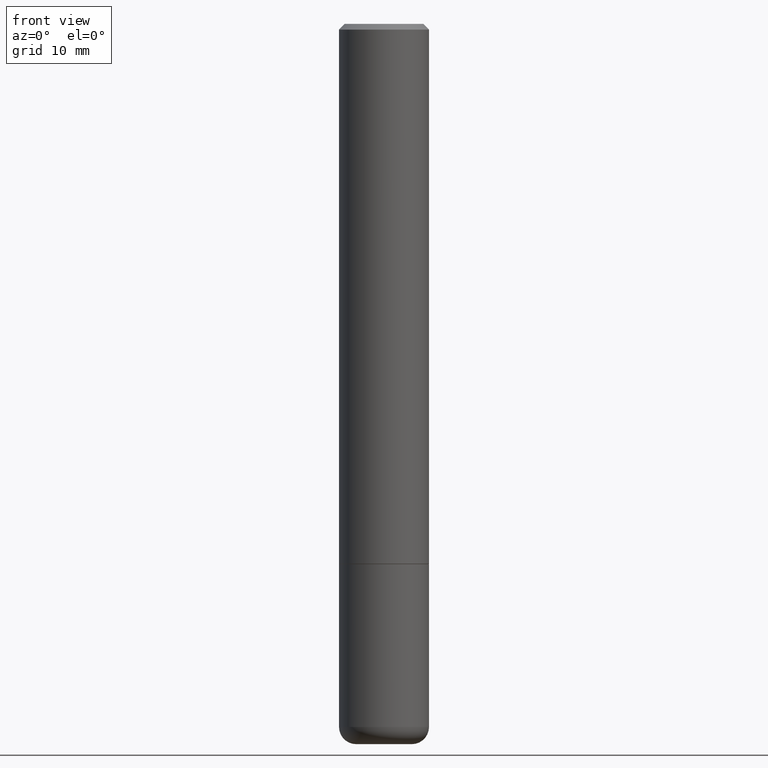
[diagram: clean part render]
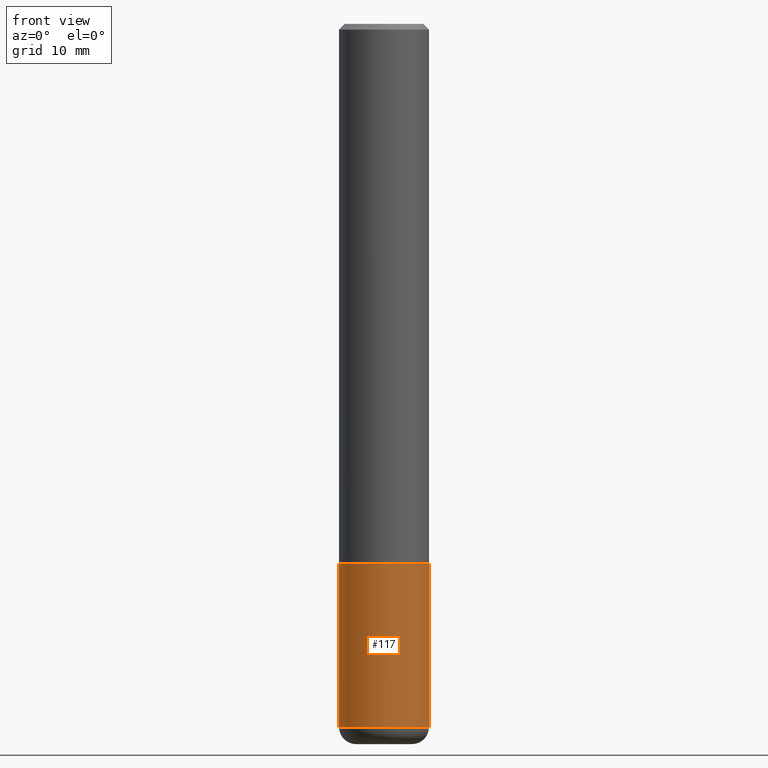
[diagram: same view with one face highlighted and labeled with its STEP entity id]
A machine part, front view. The second image highlights one B-rep face of the part: STEP entity #117.
In plain terms, the highlighted cylindrical surface (partial cylindrical patch) has radius 3.9688 mm, axis along (-0, 0, 1).
Its self-contained STEP definition (entity closure, byte-faithful):
#3 = VERTEX_POINT ( 'NONE', #11 ) ;
#11 = CARTESIAN_POINT ( 'NONE',  ( -0.1562500000000001110, -7.408991442152118508E-15, -2.440000000000000391 ) ) ;
#17 = CARTESIAN_POINT ( 'NONE',  ( -0.1562500000000000000, -6.422647963928930337E-15, -1.875000000000000000 ) ) ;
#27 = AXIS2_PLACEMENT_3D ( 'NONE', #53, #76, #185 ) ;
#32 = LINE ( 'NONE', #317, #150 ) ;
#51 = AXIS2_PLACEMENT_3D ( 'NONE', #386, #297, #167 ) ;
#53 = CARTESIAN_POINT ( 'NONE',  ( 0.000000000000000000, 0.000000000000000000, 0.000000000000000000 ) ) ;
#58 = CARTESIAN_POINT ( 'NONE',  ( 0.1562500000000001110, -9.610302385165753433E-15, -2.440000000000000391 ) ) ;
#73 = ORIENTED_EDGE ( 'NONE', *, *, #323, .F. ) ;
#76 = DIRECTION ( 'NONE',  ( -2.445468806185136597E-29, 3.491481338843145583E-15, 1.000000000000000000 ) ) ;
#90 = DIRECTION ( 'NONE',  ( -2.445468806185136877E-29, 3.491481338843145188E-15, 1.000000000000000000 ) ) ;
#103 = EDGE_CURVE ( 'NONE', #195, #295, #206, .T. ) ;
#117 = ADVANCED_FACE ( 'NONE', ( #375 ), #254, .T. ) ;
#141 = ORIENTED_EDGE ( 'NONE', *, *, #296, .T. ) ;
#150 = VECTOR ( 'NONE', #90, 39.37007874015748143 ) ;
#167 = DIRECTION ( 'NONE',  ( 1.000000000000000000, -6.982962677686262766E-15, 0.000000000000000000 ) ) ;
#185 = DIRECTION ( 'NONE',  ( 1.000000000000000000, -6.982962677686266711E-15, 4.876176775795936353E-29 ) ) ;
#195 = VERTEX_POINT ( 'NONE', #17 ) ;
#206 = CIRCLE ( 'NONE', #261, 0.1562500000000000000 ) ;
#222 = DIRECTION ( 'NONE',  ( 1.000000000000000000, -6.982962677686269077E-15, 0.000000000000000000 ) ) ;
#229 = DIRECTION ( 'NONE',  ( -2.445468806185136877E-29, 3.491481338843145188E-15, 1.000000000000000000 ) ) ;
#237 = EDGE_LOOP ( 'NONE', ( #73, #141, #396, #402 ) ) ;
#248 = CARTESIAN_POINT ( 'NONE',  ( 4.585254011597131119E-29, -6.546527510330898707E-15, -1.875000000000000000 ) ) ;
#252 = DIRECTION ( 'NONE',  ( -2.445468806185136597E-29, 3.491481338843145583E-15, 1.000000000000000000 ) ) ;
#254 = CYLINDRICAL_SURFACE ( 'NONE', #27, 0.1562500000000000000 ) ;
#258 = CARTESIAN_POINT ( 'NONE',  ( 0.1562500000000000000, -7.637615428719378669E-15, -1.875000000000000000 ) ) ;
#261 = AXIS2_PLACEMENT_3D ( 'NONE', #248, #252, #222 ) ;
#295 = VERTEX_POINT ( 'NONE', #258 ) ;
#296 = EDGE_CURVE ( 'NONE', #3, #414, #316, .T. ) ;
#297 = DIRECTION ( 'NONE',  ( -2.445468806185136597E-29, 3.491481338843145583E-15, 1.000000000000000000 ) ) ;
#316 = CIRCLE ( 'NONE', #51, 0.1562500000000000000 ) ;
#317 = CARTESIAN_POINT ( 'NONE',  ( -0.1562500000000000000, 1.110223024625156540E-15, -7.685836078523291160E-30 ) ) ;
#319 = LINE ( 'NONE', #392, #411 ) ;
#323 = EDGE_CURVE ( 'NONE', #3, #195, #32, .T. ) ;
#333 = EDGE_CURVE ( 'NONE', #414, #295, #319, .T. ) ;
#375 = FACE_OUTER_BOUND ( 'NONE', #237, .T. ) ;
#386 = CARTESIAN_POINT ( 'NONE',  ( 5.966943887091733341E-29, -8.519214466777275048E-15, -2.440000000000000391 ) ) ;
#392 = CARTESIAN_POINT ( 'NONE',  ( 0.1562500000000000000, -1.091087918388479174E-15, 7.619026212181150377E-30 ) ) ;
#396 = ORIENTED_EDGE ( 'NONE', *, *, #333, .T. ) ;
#402 = ORIENTED_EDGE ( 'NONE', *, *, #103, .F. ) ;
#411 = VECTOR ( 'NONE', #229, 39.37007874015748143 ) ;
#414 = VERTEX_POINT ( 'NONE', #58 ) ;